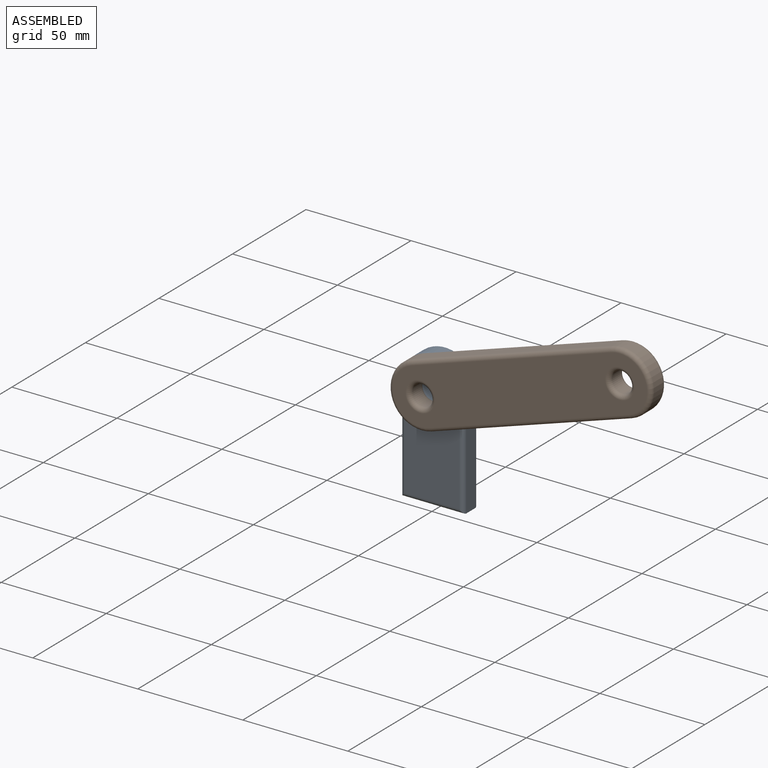
[diagram: assembled view]
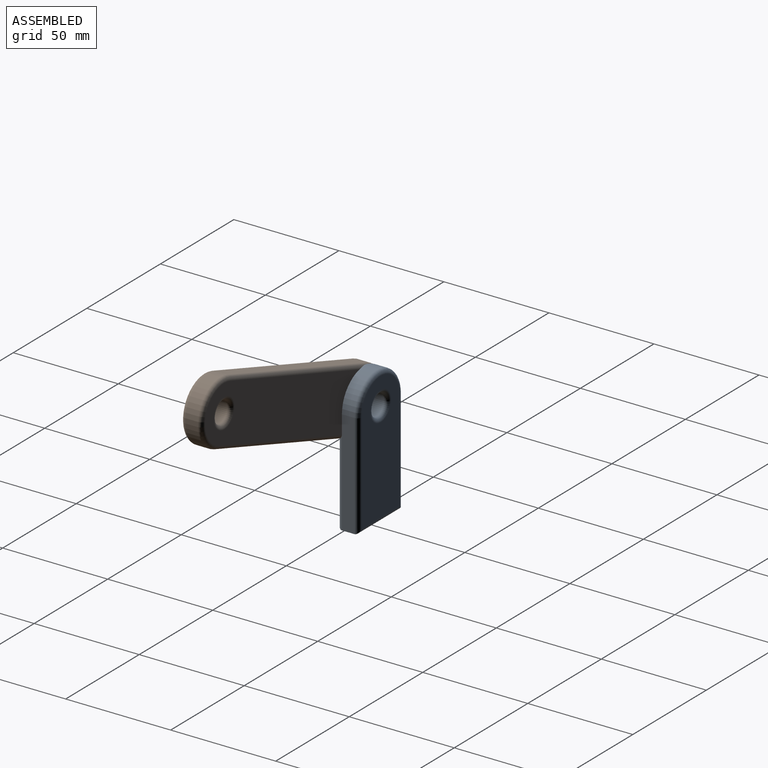
[diagram: assembled view, second angle]
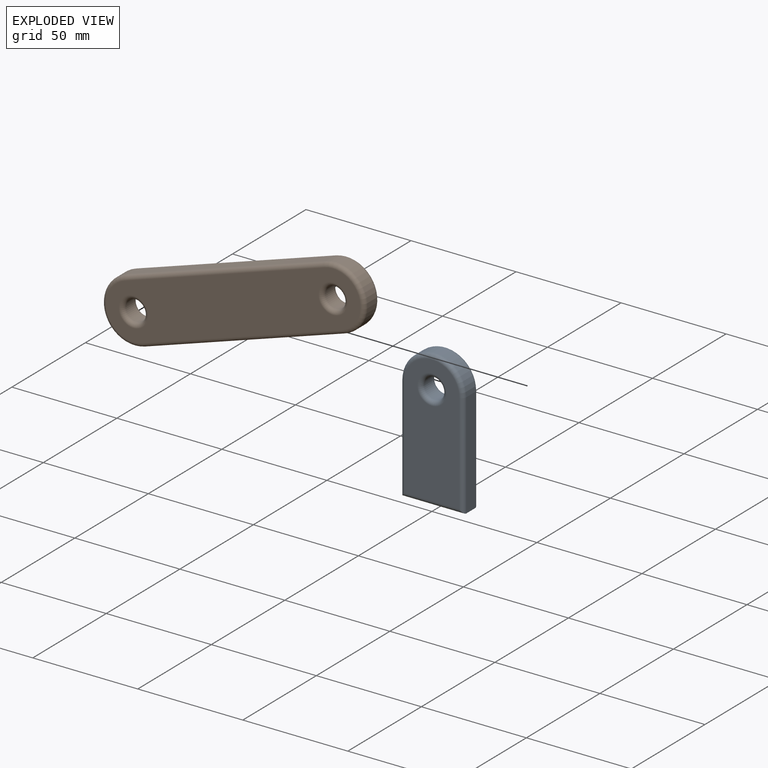
[diagram: exploded view]
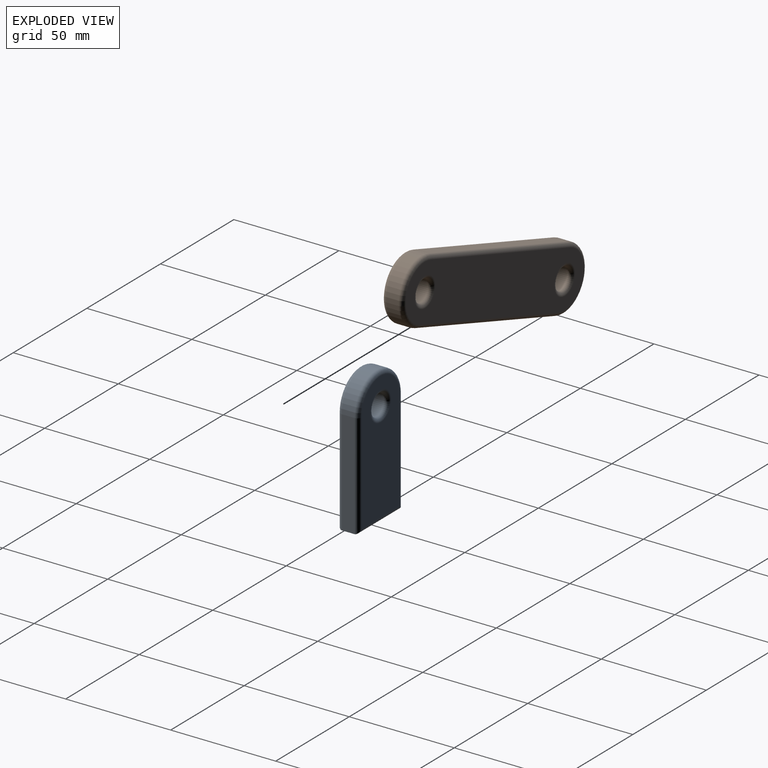
[diagram: exploded view, second angle]
ASSEMBLY  parts=2 mates=2
PART A: 17 faces, bbox 32.5x10x66.2 mm
  f0: plane 50x6mm, normal (1,0,0), area 300mm2, adj f1,f4,f10,f14
  f1: cylinder r=15mm len=30mm, axis (0,1,0), area 282.7mm2, adj f0,f2,f8,f12
  f2: plane 50x6mm, normal (-1,0,0), area 300mm2, adj f1,f4,f7,f11
  f3: cylinder r=5mm len=10mm, axis (0,1,0), area 188.5mm2, adj f15,f16
  f4: plane 30x6mm, normal (0,0,-1), area 180mm2, adj f0,f2,f9,f13
  f5: plane 61x26mm, normal (0,-1,0), area 1359.5mm2, adj f11,f12,f13,f14,f16
  f6: plane 61x26mm, normal (0,1,0), area 1359.5mm2, adj f7,f8,f9,f10,f15
  f7: cylinder r=2mm len=50mm, axis (0,0,-1), area 154.8mm2, adj f2,f6,f8,f9
  f8: torus R=13mm, axis (0,-1,0), area 140.9mm2, adj f1,f6,f7,f10
  f9: cylinder r=2mm len=30mm, axis (1,0,0), area 89.7mm2, adj f4,f6,f7,f10
  f10: cylinder r=2mm len=50mm, axis (0,0,1), area 154.8mm2, adj f0,f6,f8,f9
  f11: cylinder r=2mm len=50mm, axis (0,0,1), area 154.8mm2, adj f2,f5,f12,f13
  f12: torus R=13mm, axis (0,-1,0), area 140.9mm2, adj f1,f5,f11,f14
  f13: cylinder r=2mm len=30mm, axis (-1,0,0), area 89.7mm2, adj f4,f5,f11,f14
  f14: cylinder r=2mm len=50mm, axis (0,0,-1), area 154.8mm2, adj f0,f5,f12,f13
  f15: torus R=7mm, axis (0,-1,0), area 113mm2, adj f3,f6
  f16: torus R=7mm, axis (0,-1,0), area 113mm2, adj f3,f5
PART B: 20 faces, bbox 32.5x10x132.5 mm
  f0: cylinder r=15mm len=30mm, axis (0,1,0), area 282.7mm2, adj f1,f5,f9,f14
  f1: plane 100x6mm, normal (-1,0,0), area 600mm2, adj f0,f2,f8,f15
  f2: cylinder r=15mm len=30mm, axis (0,1,0), area 282.7mm2, adj f1,f5,f10,f17
  f3: cylinder r=5mm len=10mm, axis (0,1,0), area 188.5mm2, adj f13,f19
  f4: cylinder r=5mm len=10mm, axis (0,1,0), area 188.5mm2, adj f12,f18
  f5: plane 100x6mm, normal (1,0,0), area 600mm2, adj f0,f2,f11,f16
  f6: plane 126x26mm, normal (0,-1,0), area 2823.1mm2, adj f12,f13,f14,f15,f16,f17
  f7: plane 126x26mm, normal (0,1,0), area 2823.1mm2, adj f8,f9,f10,f11,f18,f19
  f8: cylinder r=2mm len=100mm, axis (0,0,-1), area 314.2mm2, adj f1,f7,f9,f10
  f9: torus R=13mm, axis (0,-1,0), area 140.9mm2, adj f0,f7,f8,f11
  f10: torus R=13mm, axis (0,-1,0), area 140.9mm2, adj f2,f7,f8,f11
  f11: cylinder r=2mm len=100mm, axis (0,0,1), area 314.2mm2, adj f5,f7,f9,f10
  f12: torus R=7mm, axis (0,-1,0), area 113mm2, adj f4,f6
  f13: torus R=7mm, axis (0,-1,0), area 113mm2, adj f3,f6
  f14: torus R=13mm, axis (0,-1,0), area 140.9mm2, adj f0,f6,f15,f16
  f15: cylinder r=2mm len=100mm, axis (0,0,1), area 314.2mm2, adj f1,f6,f14,f17
  f16: cylinder r=2mm len=100mm, axis (0,0,-1), area 314.2mm2, adj f5,f6,f14,f17
  f17: torus R=13mm, axis (0,-1,0), area 140.9mm2, adj f2,f6,f15,f16
  f18: torus R=7mm, axis (0,-1,0), area 113mm2, adj f4,f7
  f19: torus R=7mm, axis (0,-1,0), area 113mm2, adj f3,f7
PLACE A t=(-42.98,10,-13.96)mm
PLACE B rot(axis=(0,1,0),71.9deg) t=(47.53,2,63.53)mm
MATE revolute A.f1 <-> B.f2  axis (0,-1,0) through (0,0,48)mm
MATE cylindrical B.f2 <-> A.f1  axis (0,-1,0) through (0,-8,48)mm
